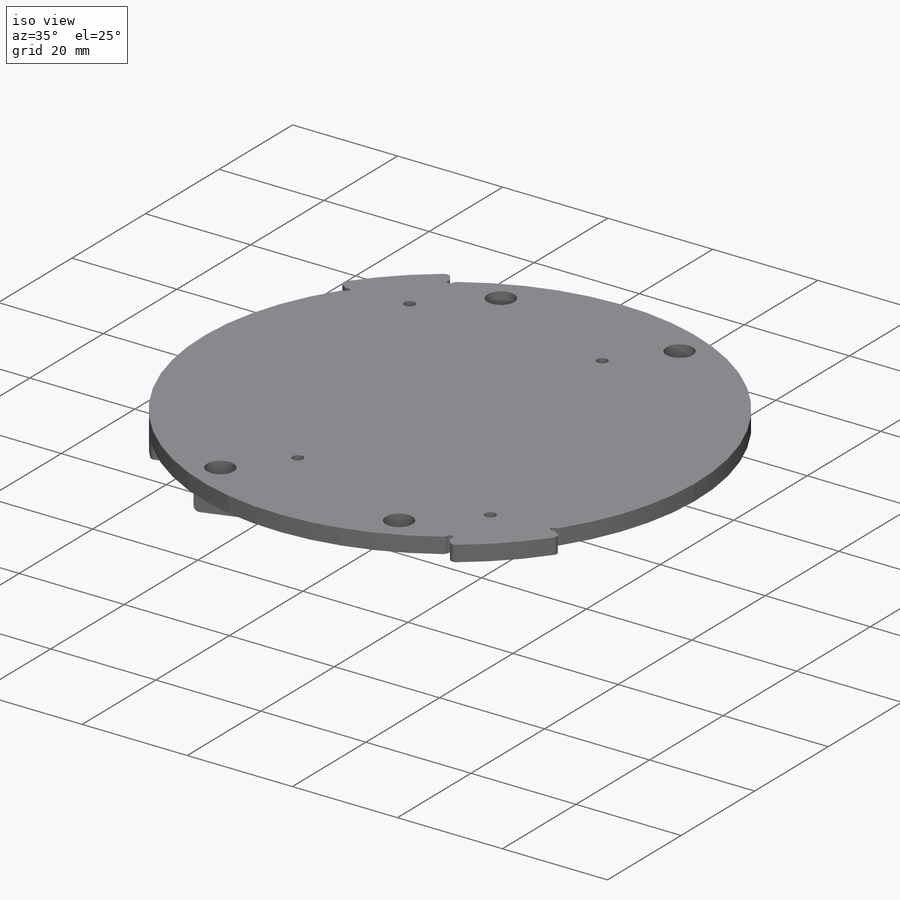
[diagram: iso view]
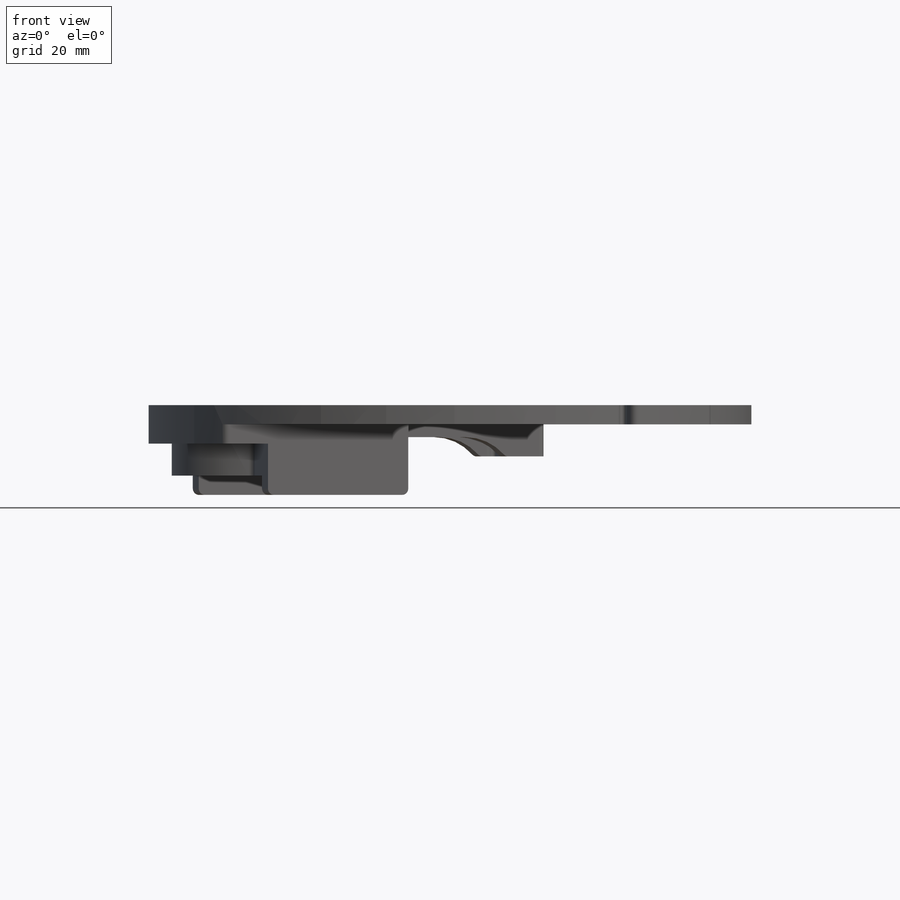
[diagram: front view]
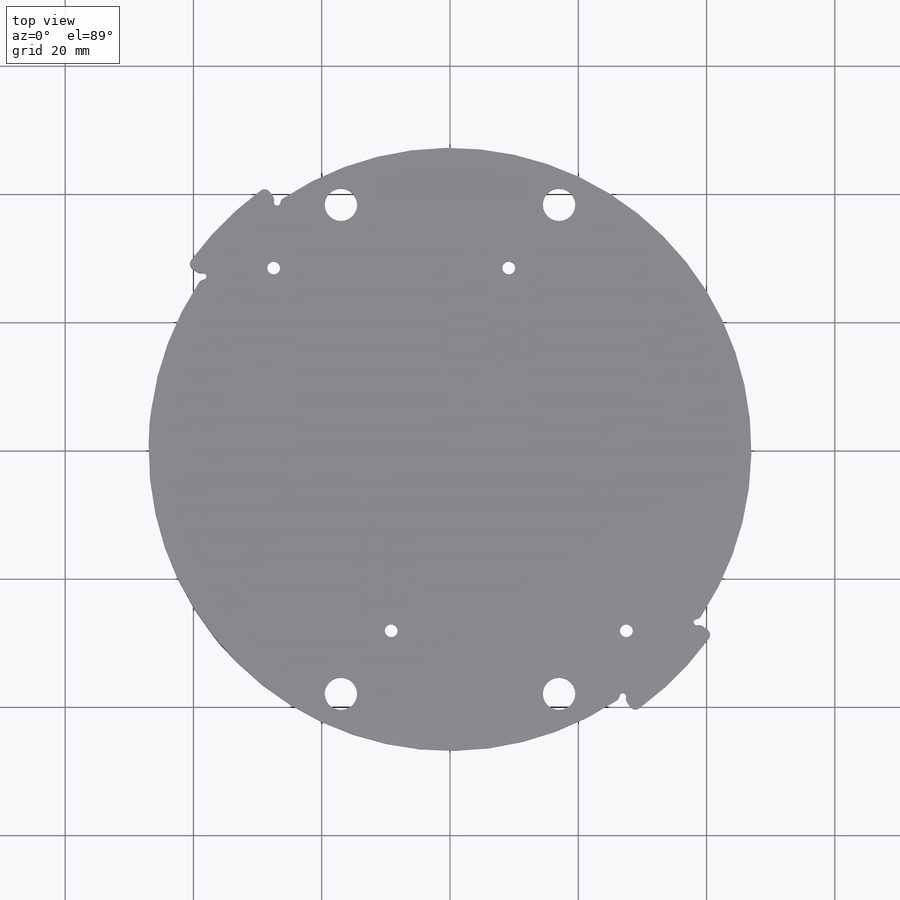
[diagram: top view]
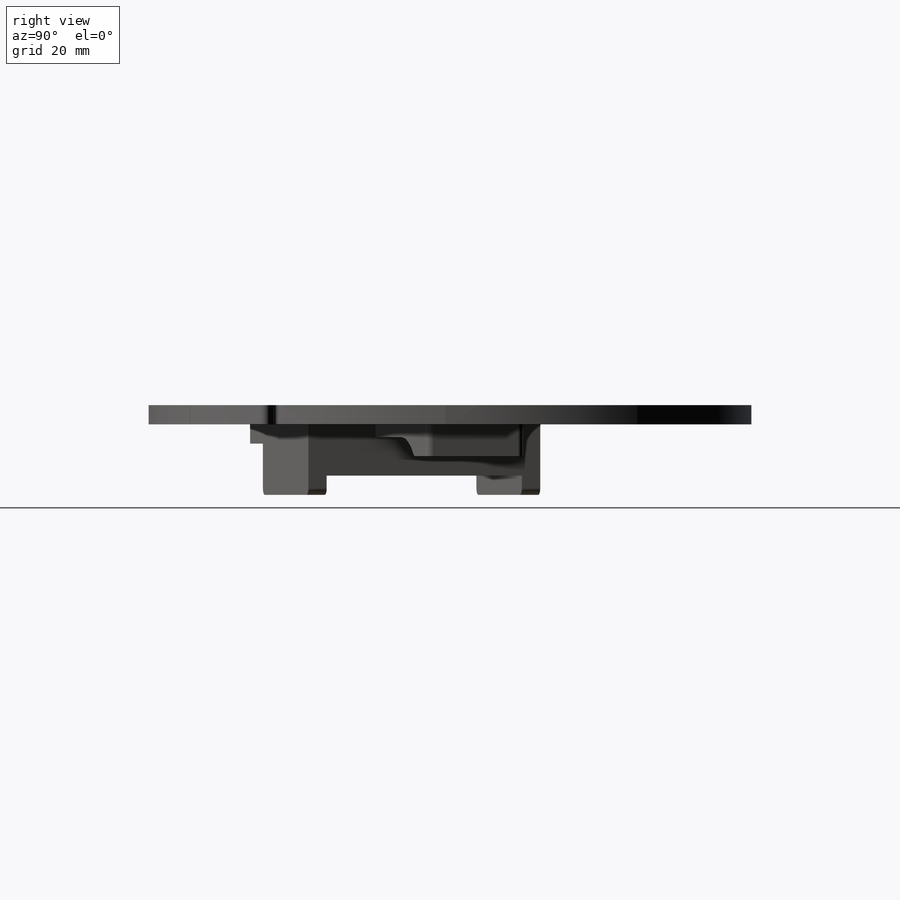
[diagram: right view]
SOLIDWORKS PART (.sldprt)
format: sldprt  version: not decoded by parser v0  size: 574,464 bytes
history: native  units: mm
features: sketch x13, extrude x6, cut_extrude x5, material x1, hole x1, fillet x1 + 1 further entry (+17 scaffold rows collapsed; 3 parser-record rows omitted)
feature tree (48):
  scaffold x17  (default folders/planes/origin — collapsed)
  material  "ABS"
  "a_base_t"
  parser-record x3  (decoder bookkeeping rows leaked as tree rows — omitted from the tree; the rows remain in map.json)
  sketch  "Sketch1"  dims[D1=3.0mm D2=16.0mm D3=23.0mm D4=36.0mm D5=8.0mm]
  extrude  "Servo Standoff"  Depth=8mm
  sketch  "Sketch3"  dims[D1=0.0mm]
  cut_extrude  "Servo Standoff Side Cut"  [1 undecoded]
  sketch  "Sketch2"  dims[D1=10.0mm D2=17.5mm D3=3.0mm]
  extrude  "Servo Top"  Depth=5mm
  sketch  "Sketch7"  dims[D1=2.0mm]
  cut_extrude  "Servo Top Side Cut"  [1 undecoded]
  sketch  "Sketch10"  dims[D1=0.0mm]
  extrude  "Servo Standoff Legs"  Depth=3mm
  sketch  "Sketch12"  dims[c1.D1=47.0mm c2.D1=45.0deg c3.D1=47.0mm c4.D1=45.0deg c4.D2=47.0mm c5.D2=20.0deg c5.D3=3.0mm]
  extrude  "Positioning Extrude"  [1 undecoded]
  hole  "#8 (0.199) Diameter Hole1"  Diameter=5.0546mm Depth=10mm
  sketch  "Sketch14"
  sketch  "Sketch13"  dims[hole-wizard template sketch: 47 standard entries collapsed; hole parameters kept: c15.Hole Depth=10.0mm c15.D3=~14.816244mm c15.Drill Angle=118.0deg]
  sketch  "Sketch8"  dims[D1=1.0mm D2=~3.668394mm]
  cut_extrude  "Allowance Holes 1"  [1 undecoded]
  sketch  "Sketch15"  dims[D1=1.0mm D2=~0.518517mm]
  cut_extrude  "Allowance Holes 2"  [1 undecoded]
  sketch  "Sketch17"
  cut_extrude  "Clearance - Shell Tab"  [1 undecoded]
  sketch  "Sketch18"
  extrude  "Shell Tab"  Depth=3mm
  sketch  "Sketch20"  dims[D2=12.0mm D1=14.0mm]
  extrude  "Shell Tab Extension"  Depth=5mm
  fillet  "Allowance Fillets"  Radius=1mm
decode coverage: 17 of 26 modeling features carry decoded parameters; 1 rows unclassified (native names shown)
note: ~ marks probable driven/reference dimensions
note: 6 parameter values undecoded
summary: no parameter record found for 6 features
note: suppression state not decoded; provenance and decode notes live in map.json
